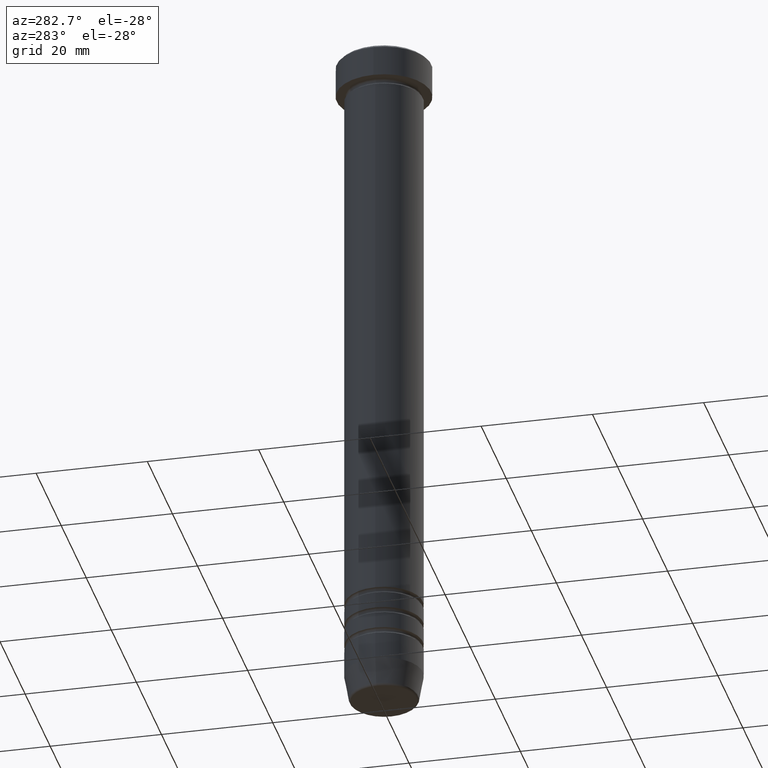
[diagram: clean part render]
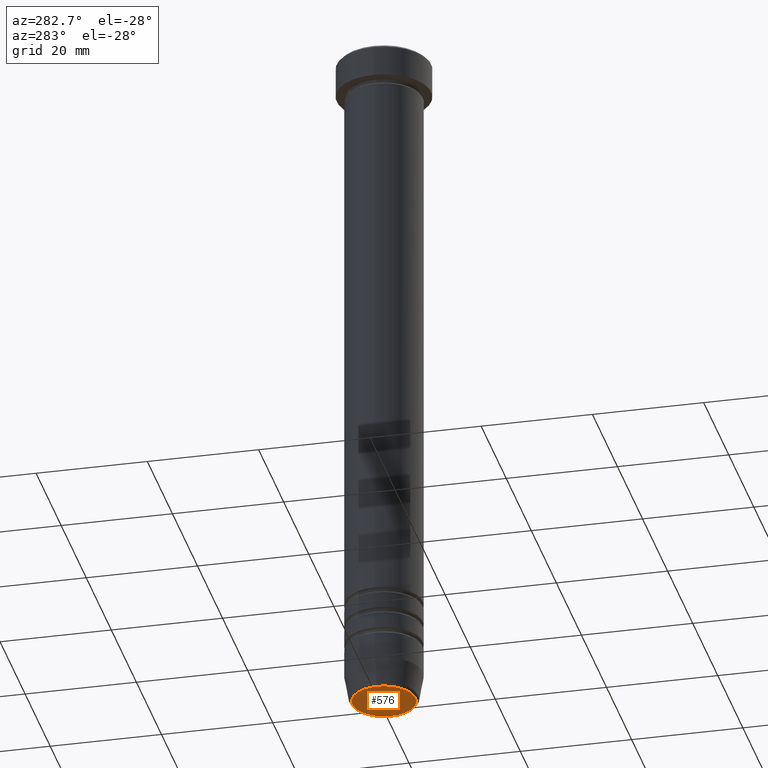
[diagram: same view with one face highlighted and labeled with its STEP entity id]
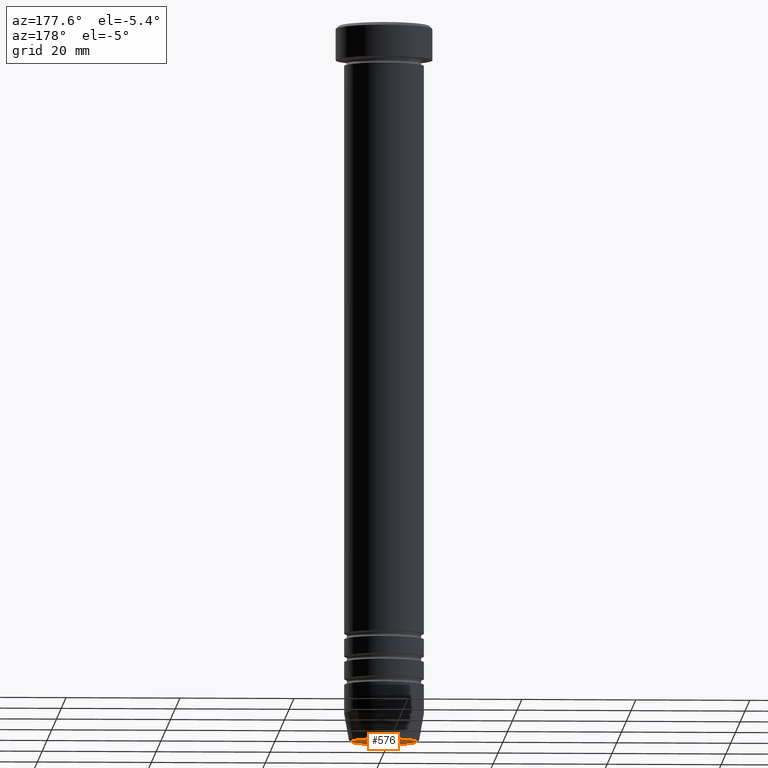
[diagram: same view with one face highlighted and labeled with its STEP entity id]
A machine part, auxiliary view. The second image highlights one B-rep face of the part: STEP entity #576.
A second angle (auxiliary view) of the same face is appended — the face is thin or edge-on in the first view.
In plain terms, the highlighted planar face has unit normal (0, -0, 1).
Its self-contained STEP definition (entity closure, byte-faithful):
#41 = AXIS2_PLACEMENT_3D ( 'NONE', #228, #477, #715 ) ;
#73 = CIRCLE ( 'NONE', #41, 5.698815280869032662 ) ;
#81 = CARTESIAN_POINT ( 'NONE',  ( -5.698815280869032662, 7.280546308273760746E-16, -126.0000000000000000 ) ) ;
#83 = CARTESIAN_POINT ( 'NONE',  ( 5.698815280869032662, 0.000000000000000000, -126.0000000000000000 ) ) ;
#214 = EDGE_CURVE ( 'NONE', #389, #612, #1053, .T. ) ;
#228 = CARTESIAN_POINT ( 'NONE',  ( 0.000000000000000000, 0.000000000000000000, -126.0000000000000000 ) ) ;
#266 = EDGE_LOOP ( 'NONE', ( #325, #776 ) ) ;
#276 = DIRECTION ( 'NONE',  ( 1.000000000000000000, 0.000000000000000000, 0.000000000000000000 ) ) ;
#325 = ORIENTED_EDGE ( 'NONE', *, *, #214, .T. ) ;
#389 = VERTEX_POINT ( 'NONE', #83 ) ;
#453 = CARTESIAN_POINT ( 'NONE',  ( 0.000000000000000000, 8.143901214329899974E-15, -126.0000000000000000 ) ) ;
#464 = DIRECTION ( 'NONE',  ( 0.000000000000000000, -0.000000000000000000, 1.000000000000000000 ) ) ;
#465 = AXIS2_PLACEMENT_3D ( 'NONE', #586, #570, #920 ) ;
#477 = DIRECTION ( 'NONE',  ( 0.000000000000000000, 0.000000000000000000, -1.000000000000000000 ) ) ;
#489 = AXIS2_PLACEMENT_3D ( 'NONE', #453, #464, #276 ) ;
#546 = PLANE ( 'NONE',  #489 ) ;
#570 = DIRECTION ( 'NONE',  ( 0.000000000000000000, 0.000000000000000000, -1.000000000000000000 ) ) ;
#576 = ADVANCED_FACE ( 'NONE', ( #993 ), #546, .F. ) ;
#586 = CARTESIAN_POINT ( 'NONE',  ( 0.000000000000000000, 0.000000000000000000, -126.0000000000000000 ) ) ;
#612 = VERTEX_POINT ( 'NONE', #81 ) ;
#641 = EDGE_CURVE ( 'NONE', #612, #389, #73, .T. ) ;
#715 = DIRECTION ( 'NONE',  ( 1.000000000000000000, 0.000000000000000000, 0.000000000000000000 ) ) ;
#776 = ORIENTED_EDGE ( 'NONE', *, *, #641, .T. ) ;
#920 = DIRECTION ( 'NONE',  ( 1.000000000000000000, 0.000000000000000000, 0.000000000000000000 ) ) ;
#993 = FACE_OUTER_BOUND ( 'NONE', #266, .T. ) ;
#1053 = CIRCLE ( 'NONE', #465, 5.698815280869032662 ) ;